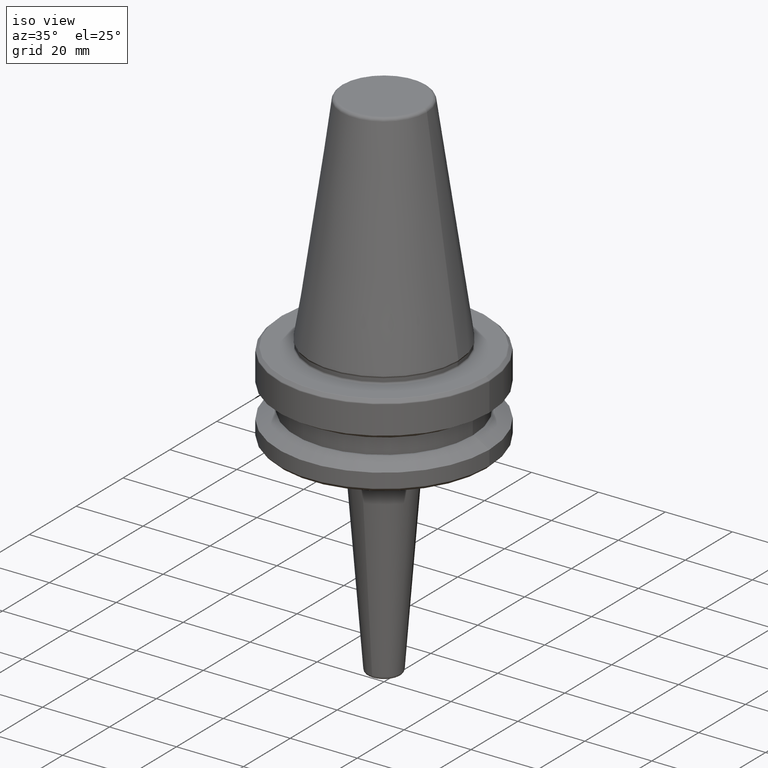
[diagram: clean part render]
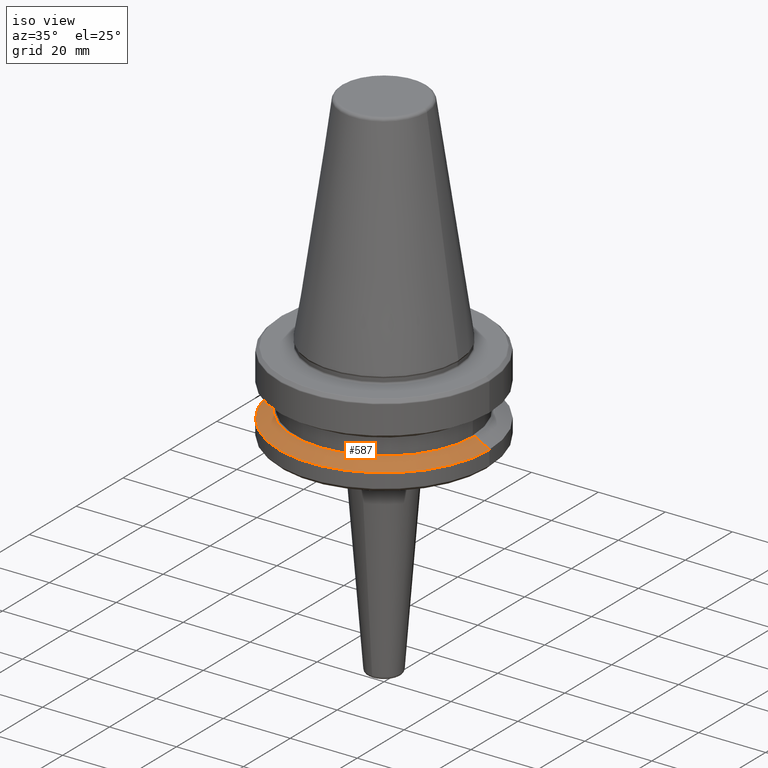
[diagram: same view with one face highlighted and labeled with its STEP entity id]
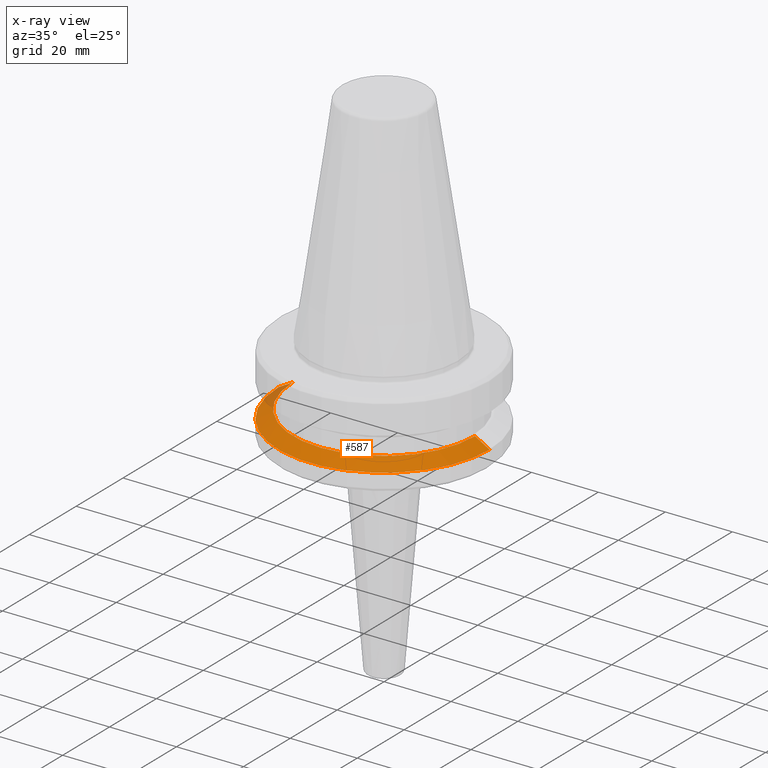
[diagram: x-ray of the same camera — body ghosted, the highlighted face saturated]
A machine part, iso view. The second image highlights one B-rep face of the part: STEP entity #587.
The next image is the same camera in x-ray: the body ghosted, the highlighted face saturated — about 4% of this face is hidden behind the body in this view.
In plain terms, the highlighted conical surface has half-angle 60 deg.
Its self-contained STEP definition (entity closure, byte-faithful):
#6 = CARTESIAN_POINT ( 'NONE',  ( 27.16962701892216700, 3.327319676275047600E-015, -19.10000000000000500 ) ) ;
#42 = CARTESIAN_POINT ( 'NONE',  ( -27.16962701892216700, 0.0000000000000000000, -19.10000000000000500 ) ) ;
#104 = AXIS2_PLACEMENT_3D ( 'NONE', #653, #923, #469 ) ;
#113 = VECTOR ( 'NONE', #756, 1000.000000000000000 ) ;
#117 = EDGE_CURVE ( 'NONE', #1111, #465, #794, .T. ) ;
#170 = EDGE_LOOP ( 'NONE', ( #1185, #680, #1041, #910 ) ) ;
#208 = EDGE_CURVE ( 'NONE', #833, #536, #1210, .T. ) ;
#234 = CARTESIAN_POINT ( 'NONE',  ( -31.50000000000000000, 3.857637417314162700E-015, -21.60014200631675500 ) ) ;
#333 = CARTESIAN_POINT ( 'NONE',  ( -27.16962701892216700, 0.0000000000000000000, -19.10000000000000500 ) ) ;
#354 = CARTESIAN_POINT ( 'NONE',  ( 31.50000000000000000, 0.0000000000000000000, -21.60014200631675500 ) ) ;
#361 = EDGE_CURVE ( 'NONE', #833, #1111, #815, .T. ) ;
#365 = LINE ( 'NONE', #6, #113 ) ;
#465 = VERTEX_POINT ( 'NONE', #354 ) ;
#469 = DIRECTION ( 'NONE',  ( 1.000000000000000000, 0.0000000000000000000, 0.0000000000000000000 ) ) ;
#488 = CARTESIAN_POINT ( 'NONE',  ( 27.16962701892216700, 3.592478546794605500E-015, -19.10000000000000500 ) ) ;
#536 = VERTEX_POINT ( 'NONE', #488 ) ;
#562 = EDGE_CURVE ( 'NONE', #536, #465, #365, .T. ) ;
#587 = ADVANCED_FACE ( 'NONE', ( #610 ), #792, .T. ) ;
#598 = VECTOR ( 'NONE', #890, 1000.000000000000000 ) ;
#610 = FACE_OUTER_BOUND ( 'NONE', #170, .T. ) ;
#653 = CARTESIAN_POINT ( 'NONE',  ( 0.0000000000000000000, 0.0000000000000000000, -19.10000000000000500 ) ) ;
#666 = CARTESIAN_POINT ( 'NONE',  ( 0.0000000000000000000, 0.0000000000000000000, -21.60014200631675500 ) ) ;
#667 = CARTESIAN_POINT ( 'NONE',  ( 0.0000000000000000000, 0.0000000000000000000, -19.10000000000000500 ) ) ;
#674 = AXIS2_PLACEMENT_3D ( 'NONE', #666, #1161, #1144 ) ;
#680 = ORIENTED_EDGE ( 'NONE', *, *, #208, .F. ) ;
#756 = DIRECTION ( 'NONE',  ( 0.8660254037844403700, 1.060575238724909000E-016, -0.4999999999999970000 ) ) ;
#792 = CONICAL_SURFACE ( 'NONE', #1104, 27.16962701892216700, 1.047197551196601200 ) ;
#794 = CIRCLE ( 'NONE', #674, 31.50000000000000000 ) ;
#815 = LINE ( 'NONE', #42, #598 ) ;
#833 = VERTEX_POINT ( 'NONE', #333 ) ;
#890 = DIRECTION ( 'NONE',  ( -0.8660254037844403700, 0.0000000000000000000, -0.4999999999999970000 ) ) ;
#910 = ORIENTED_EDGE ( 'NONE', *, *, #117, .T. ) ;
#923 = DIRECTION ( 'NONE',  ( -0.0000000000000000000, -0.0000000000000000000, 1.000000000000000000 ) ) ;
#948 = DIRECTION ( 'NONE',  ( 0.0000000000000000000, 0.0000000000000000000, -1.000000000000000000 ) ) ;
#1041 = ORIENTED_EDGE ( 'NONE', *, *, #361, .T. ) ;
#1104 = AXIS2_PLACEMENT_3D ( 'NONE', #667, #948, #1145 ) ;
#1111 = VERTEX_POINT ( 'NONE', #234 ) ;
#1144 = DIRECTION ( 'NONE',  ( 1.000000000000000000, 0.0000000000000000000, 0.0000000000000000000 ) ) ;
#1145 = DIRECTION ( 'NONE',  ( -1.000000000000000000, 0.0000000000000000000, 0.0000000000000000000 ) ) ;
#1161 = DIRECTION ( 'NONE',  ( -0.0000000000000000000, -0.0000000000000000000, 1.000000000000000000 ) ) ;
#1185 = ORIENTED_EDGE ( 'NONE', *, *, #562, .F. ) ;
#1210 = CIRCLE ( 'NONE', #104, 27.16962701892216700 ) ;